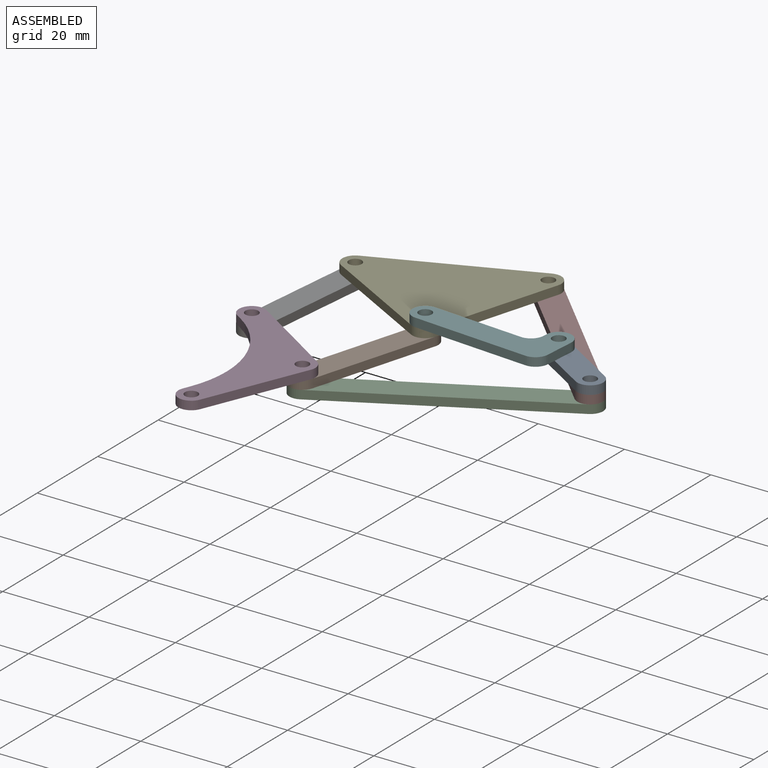
[diagram: assembled view]
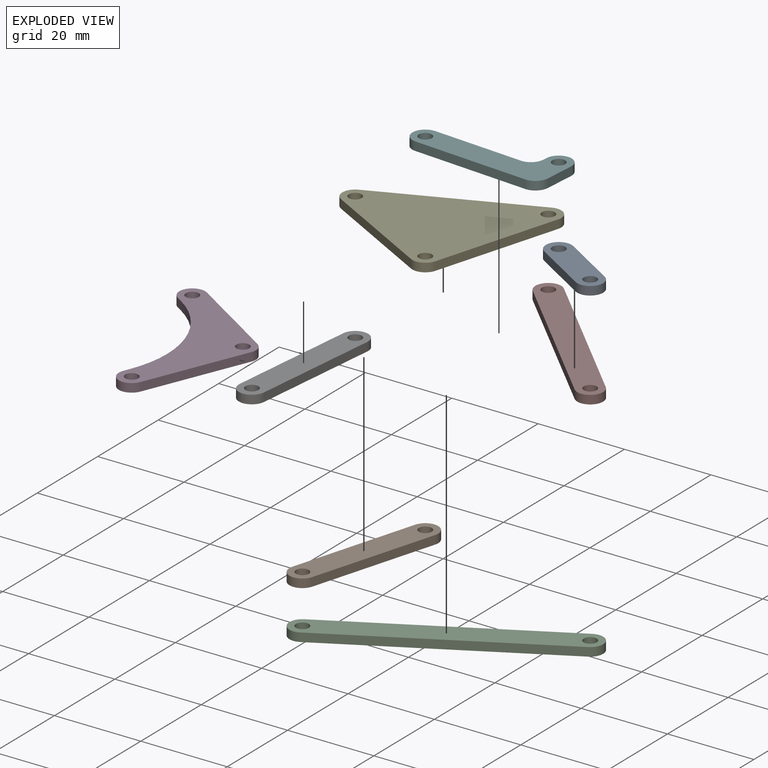
[diagram: exploded view]
GUIDED TOUR — MATED ASSEMBLY (Onshape document e64e4499c72a617ab07565a3, AutoMate assembly e64e4499c72a617ab07565a3_f2951c71cba37e5176c06842_a24cb1f9f9b5f16dfcb40d52_default)

This assembly has 8 components, labeled P0..P7 below (a component is one placed occurrence of a part; the same part can appear more than once), held together by 10 mates. A mate is a constraint between two components; its type names the relative motion it leaves free:
  REVOLUTE — leaves rotation about the listed axis free (a hinge).
Axis/direction vectors are unit vectors and 'through' points are millimeter coordinates, both in the assembly's world frame.

MATES
  1. REVOLUTE "轉動 6": P0 <-> P5, axis (0.000, 0.000, 1.000) through (55.74, 67.24, 4.14) mm
  2. REVOLUTE "轉動 3": P4 <-> P6, axis (0.000, 0.000, -1.000) through (1.97, 76.70, 2.14) mm
  3. REVOLUTE "轉動 4": P4 <-> P1, axis (0.000, 0.000, -1.000) through (28.29, 62.28, 2.14) mm
  4. REVOLUTE "轉動 1": P6 <-> P3, axis (0.000, 0.000, 1.000) through (-1.08, 46.85, 2.14) mm
  5. REVOLUTE "轉動 10": P7 <-> P2, axis (0.000, 0.000, -1.000) through (68.52, 59.39, 0.14) mm
  6. REVOLUTE "轉動 8": P7 <-> P4, axis (0.000, 0.000, 1.000) through (36.60, 91.11, 2.14) mm
  7. REVOLUTE "轉動 9": P7 <-> P0, axis (0.000, 0.000, 1.000) through (68.52, 59.39, 2.14) mm
  8. REVOLUTE "轉動 5": P5 <-> P4, axis (0.000, 0.000, -1.000) through (28.29, 62.28, 4.14) mm
  9. REVOLUTE "轉動 2": P1 <-> P3, axis (0.000, 0.000, 1.000) through (20.02, 33.44, 2.14) mm
  10. REVOLUTE "轉動 7": P1 <-> P2, axis (0.000, 0.000, -1.000) through (20.02, 33.44, 0.14) mm

ASSEMBLY ORDER
  1. P7 — the base component [order verified]
  2. P1 [order verified]
  3. P0 [order verified]
  4. P6 [order verified]
  5. P4 [order verified]
  6. P3 [order verified]
  7. P2 [order verified]
  8. P5 [order verified]
Order-tag legend:
  [order verified] — this step's position reverses a verified removal order: the component was checked to insert without passing through the ones already placed.

Of the 8 components, 8 carry the full construction recipe — the FeatureScript program that regenerates the part's solid from scratch; the rest are supplied as boundary geometry only.
Each toured component is shown spotlighted twice — in the assembled view, then in the exploded view, where a leader line traces a displaced component back to its assembled socket (saturated green if recipe-attached, orange if geometry-only; every other component desaturated gray) — followed by its recipe or geometry summary and the mates that hold it.
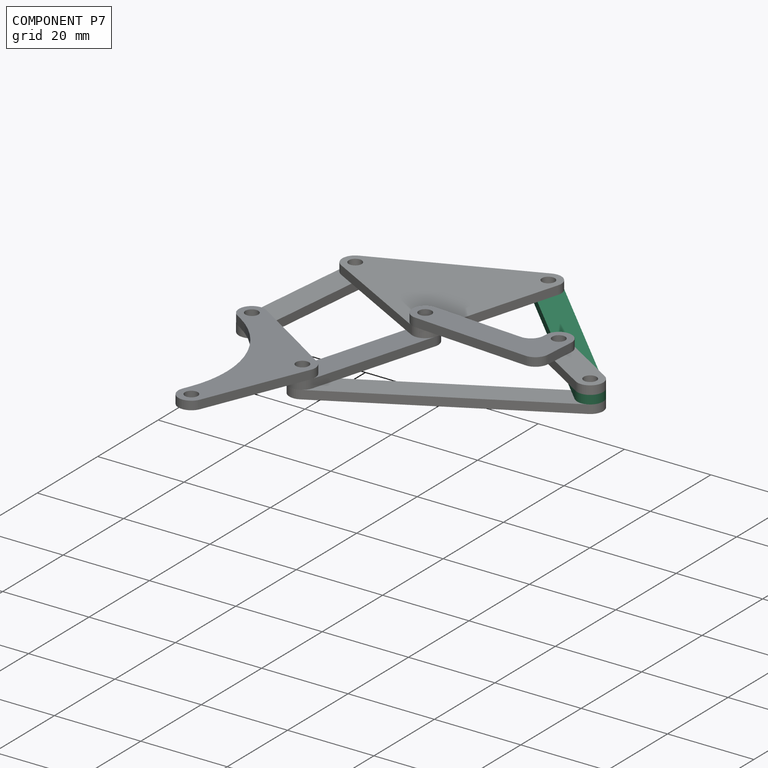
[diagram: component P7 — assembled]
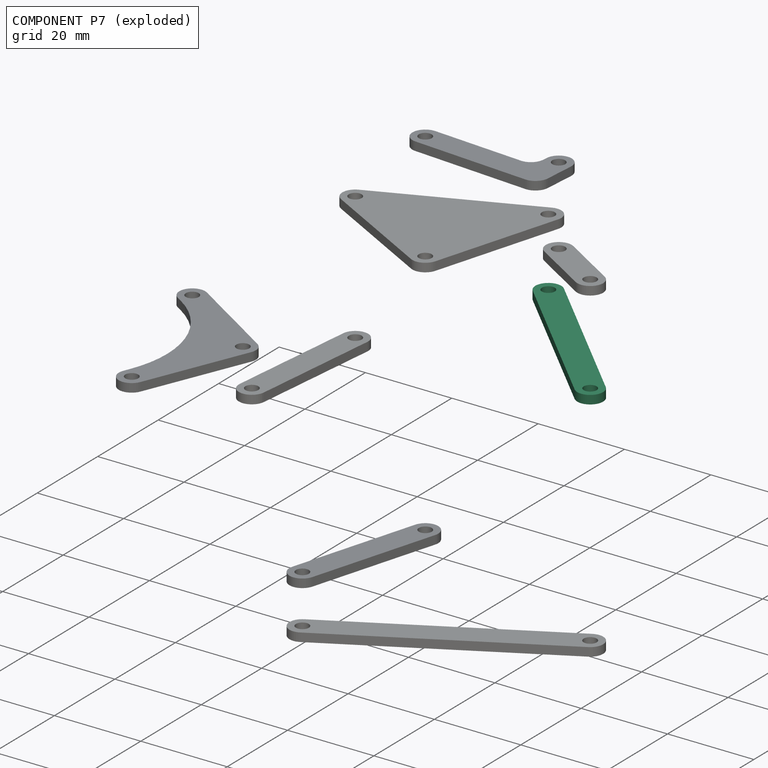
[diagram: component P7 — exploded]
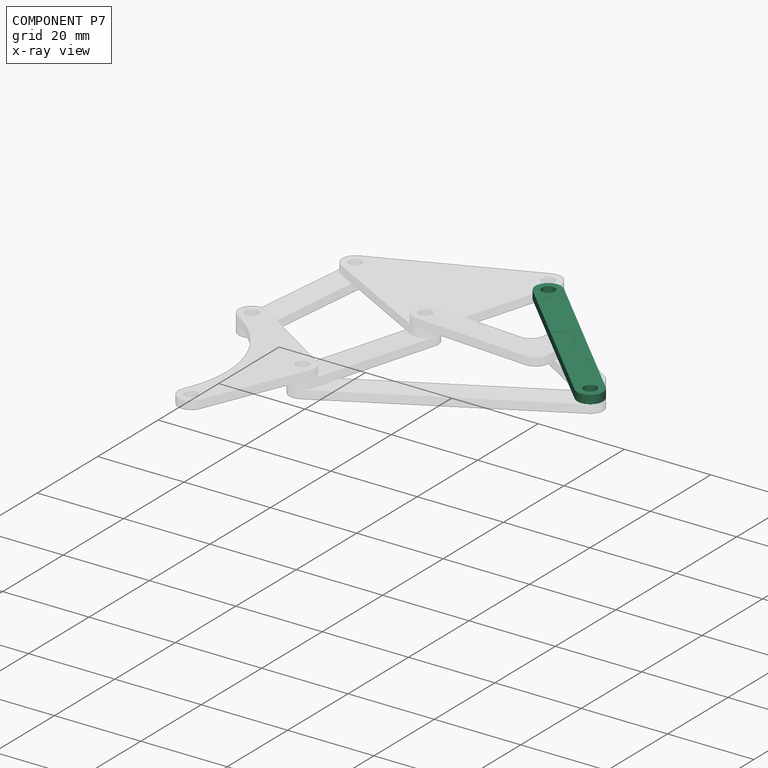
[diagram: component P7 — x-ray view]
COMPONENT P7 — recipe-attached (CADFS 00742755, mesh-verified: the recipe's output STEP matches this component's geometry to below the mesh-comparison resolution (tessellation chordal tolerance ~0.0771 mm)).
Held by: REVOLUTE mate "轉動 10" to P2; REVOLUTE mate "轉動 8" to P4; REVOLUTE mate "轉動 9" to P0.
Construction recipe (FeatureScript — the CAD program that rebuilds this solid; sketch coordinates are in the units given by the * unit suffixes, e.g. mm):

FeatureScript 1511;
import(path : "onshape/std/geometry.fs", version : "1511.0");
import(path : "onshape/std/common.fs", version : "1511.0");
const mm = millimeter;
const VERTEX = EntityType.VERTEX;
const EDGE = EntityType.EDGE;
const FACE = EntityType.FACE;
const BODY = EntityType.BODY;
function v(x, y){return vector(x, y);}
function OD(order){return orderDisambiguation(order);}
function OSD(set){return originalSetDisambiguation(set);}
function TD(topology){return topologyDisambiguation(topology);}
function TDD(query){return trueDependencyDisambiguation(query);}
function sQuery(a, b, c) {return sketchEntityQuery(a, b, c);}

annotation { "Feature Type Name" : "Feature", "Feature Type Description" : "" }
export const myFeature = defineFeature(function(context is Context, id is Id, definition is map)
    precondition{}
    {
        {
            var Q0;
            Q0=qCreatedBy(makeId("Top.planeOp"),FACE);
            var sketch = newSketch(context, id + "F0", { "sketchPlane" : qUnion([Q0])});
            skLineSegment(sketch, "E0.bottom", {"start": v(22.5, -3) * mm, "end": v(-22.5, -3) * mm});
            skLineSegment(sketch, "E0.top", {"start": v(22.5, 3) * mm, "end": v(-22.5, 3) * mm});
            skPoint(sketch, "E0.middle", {"position": v(0, 0) * mm});
            skArc(sketch, "E1", {"start": v(-22.5, 3) * mm, "mid": v(-25.5, 0) * mm, "end": v(-22.5, -3) * mm});
            skArc(sketch, "E2", {"start": v(22.5, -3) * mm, "mid": v(25.5, 0) * mm, "end": v(22.5, 3) * mm});
            skCircle(sketch, "E3", {"center": v(-22.5, 0) * mm, "radius": 1.5 * mm});
            skCircle(sketch, "E4", {"center": v(22.5, 0) * mm, "radius": 1.5 * mm});
            skSolve(sketch);
        }
        {
            var Q0;
            Q0 = qSketchRegion(id + "F0", true);
            extrude(context, id + "F1", {"entities" : qUnion([Q0]), "depth" : 2 * mm, "offsetDistance" : 25 * mm});
        }
    });
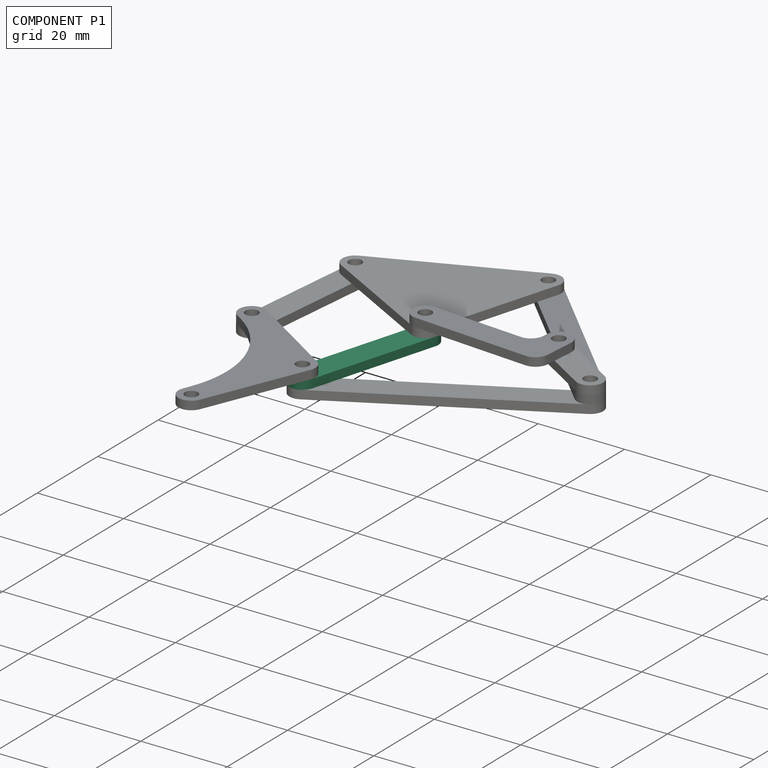
[diagram: component P1 — assembled]
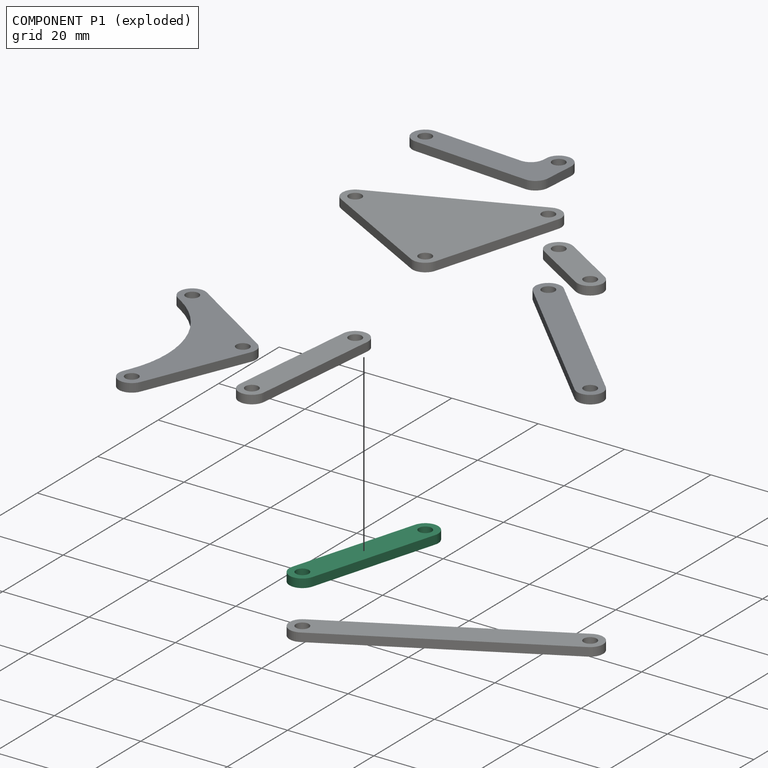
[diagram: component P1 — exploded]
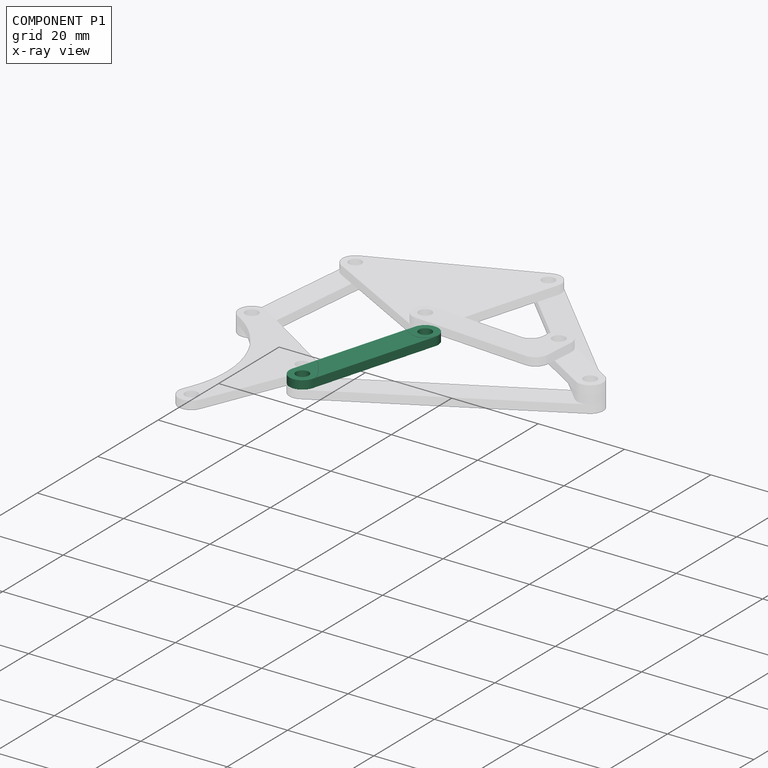
[diagram: component P1 — x-ray view]
COMPONENT P1 — recipe-attached (CADFS 00742754, mesh-verified: the recipe's output STEP matches this component's geometry to below the mesh-comparison resolution (tessellation chordal tolerance ~0.0548 mm)).
Held by: REVOLUTE mate "轉動 4" to P4; REVOLUTE mate "轉動 2" to P3; REVOLUTE mate "轉動 7" to P2.
Construction recipe (FeatureScript — the CAD program that rebuilds this solid; sketch coordinates are in the units given by the * unit suffixes, e.g. mm):

FeatureScript 1511;
import(path : "onshape/std/geometry.fs", version : "1511.0");
import(path : "onshape/std/common.fs", version : "1511.0");
const mm = millimeter;
const VERTEX = EntityType.VERTEX;
const EDGE = EntityType.EDGE;
const FACE = EntityType.FACE;
const BODY = EntityType.BODY;
function v(x, y){return vector(x, y);}
function OD(order){return orderDisambiguation(order);}
function OSD(set){return originalSetDisambiguation(set);}
function TD(topology){return topologyDisambiguation(topology);}
function TDD(query){return trueDependencyDisambiguation(query);}
function sQuery(a, b, c) {return sketchEntityQuery(a, b, c);}

annotation { "Feature Type Name" : "Feature", "Feature Type Description" : "" }
export const myFeature = defineFeature(function(context is Context, id is Id, definition is map)
    precondition{}
    {
        {
            var Q0;
            Q0=qCreatedBy(makeId("Top.planeOp"),FACE);
            var sketch = newSketch(context, id + "F0", { "sketchPlane" : qUnion([Q0])});
            skLineSegment(sketch, "E0.bottom", {"start": v(15, -3) * mm, "end": v(-15, -3) * mm});
            skLineSegment(sketch, "E0.top", {"start": v(15, 3) * mm, "end": v(-15, 3) * mm});
            skPoint(sketch, "E0.middle", {"position": v(0, 0) * mm});
            skArc(sketch, "E1", {"start": v(-15, 3) * mm, "mid": v(-18, 0) * mm, "end": v(-15, -3) * mm});
            skArc(sketch, "E2", {"start": v(15, -3) * mm, "mid": v(18, 0) * mm, "end": v(15, 3) * mm});
            skCircle(sketch, "E3", {"center": v(-15, 0) * mm, "radius": 1.5 * mm});
            skCircle(sketch, "E4", {"center": v(15, 0) * mm, "radius": 1.5 * mm});
            skSolve(sketch);
        }
        {
            var Q0;
            Q0 = qSketchRegion(id + "F0", true);
            extrude(context, id + "F1", {"entities" : qUnion([Q0]), "depth" : 2 * mm, "offsetDistance" : 25 * mm});
        }
    });
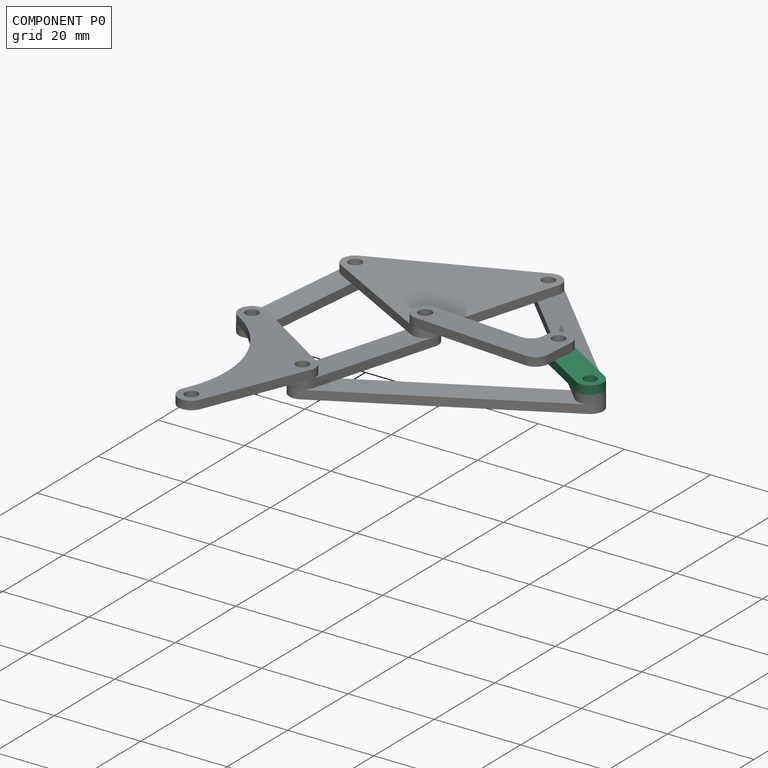
[diagram: component P0 — assembled]
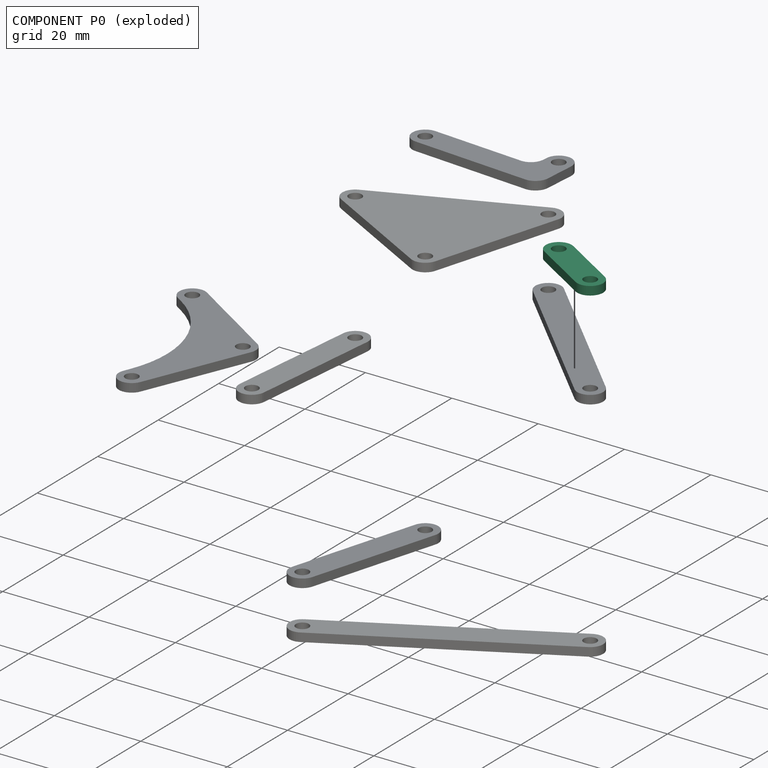
[diagram: component P0 — exploded]
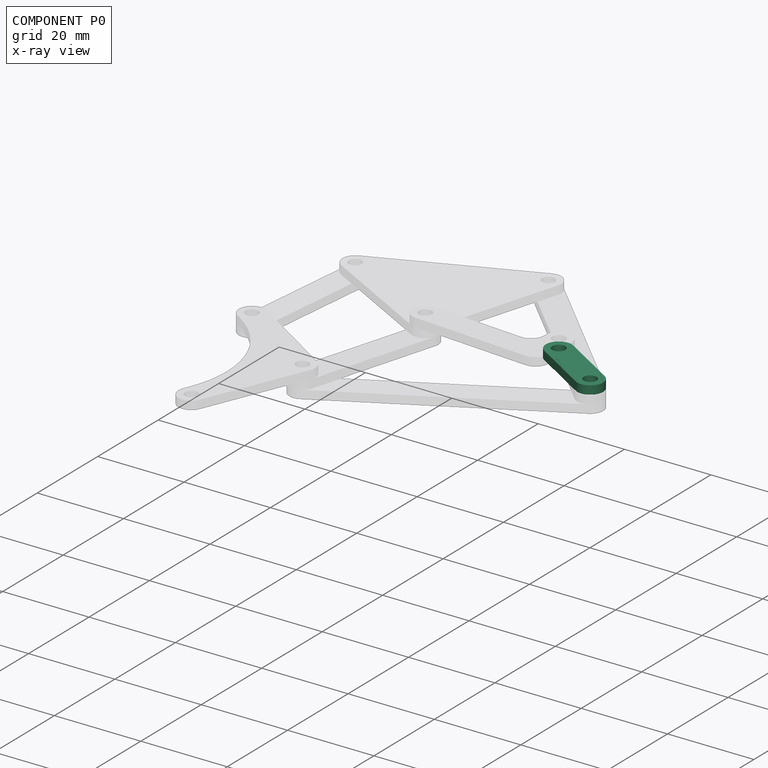
[diagram: component P0 — x-ray view]
COMPONENT P0 — recipe-attached (CADFS 00742753, mesh-verified: the recipe's output STEP matches this component's geometry to below the mesh-comparison resolution (tessellation chordal tolerance ~0.0329 mm)).
Held by: REVOLUTE mate "轉動 6" to P5; REVOLUTE mate "轉動 9" to P7.
Construction recipe (FeatureScript — the CAD program that rebuilds this solid; sketch coordinates are in the units given by the * unit suffixes, e.g. mm):

FeatureScript 1511;
import(path : "onshape/std/geometry.fs", version : "1511.0");
import(path : "onshape/std/common.fs", version : "1511.0");
const mm = millimeter;
const VERTEX = EntityType.VERTEX;
const EDGE = EntityType.EDGE;
const FACE = EntityType.FACE;
const BODY = EntityType.BODY;
function v(x, y){return vector(x, y);}
function OD(order){return orderDisambiguation(order);}
function OSD(set){return originalSetDisambiguation(set);}
function TD(topology){return topologyDisambiguation(topology);}
function TDD(query){return trueDependencyDisambiguation(query);}
function sQuery(a, b, c) {return sketchEntityQuery(a, b, c);}

annotation { "Feature Type Name" : "Feature", "Feature Type Description" : "" }
export const myFeature = defineFeature(function(context is Context, id is Id, definition is map)
    precondition{}
    {
        {
            var Q0;
            Q0=qCreatedBy(makeId("Top.planeOp"),FACE);
            var sketch = newSketch(context, id + "F0", { "sketchPlane" : qUnion([Q0])});
            skLineSegment(sketch, "E0.bottom", {"start": v(7.5, -3) * mm, "end": v(-7.5, -3) * mm});
            skLineSegment(sketch, "E0.top", {"start": v(7.5, 3) * mm, "end": v(-7.5, 3) * mm});
            skPoint(sketch, "E0.middle", {"position": v(0, 0) * mm});
            skArc(sketch, "E1", {"start": v(-7.5, 3) * mm, "mid": v(-10.5, 0) * mm, "end": v(-7.5, -3) * mm});
            skArc(sketch, "E2", {"start": v(7.5, -3) * mm, "mid": v(10.5, 0) * mm, "end": v(7.5, 3) * mm});
            skCircle(sketch, "E3", {"center": v(-7.5, 0) * mm, "radius": 1.5 * mm});
            skCircle(sketch, "E4", {"center": v(7.5, 0) * mm, "radius": 1.5 * mm});
            skSolve(sketch);
        }
        {
            var Q0;
            Q0 = qSketchRegion(id + "F0", true);
            extrude(context, id + "F1", {"entities" : qUnion([Q0]), "depth" : 2 * mm, "offsetDistance" : 25 * mm});
        }
    });
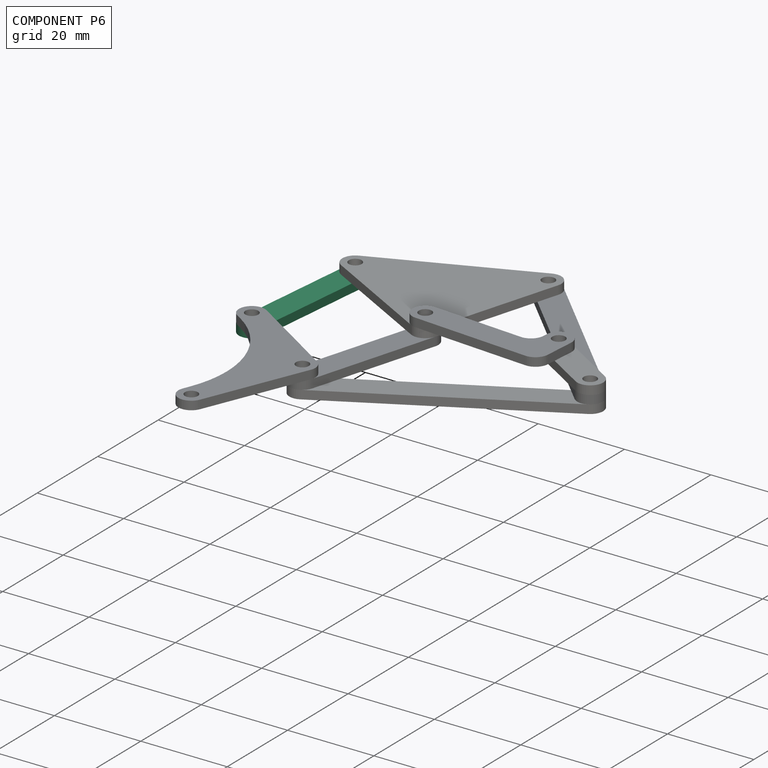
[diagram: component P6 — assembled]
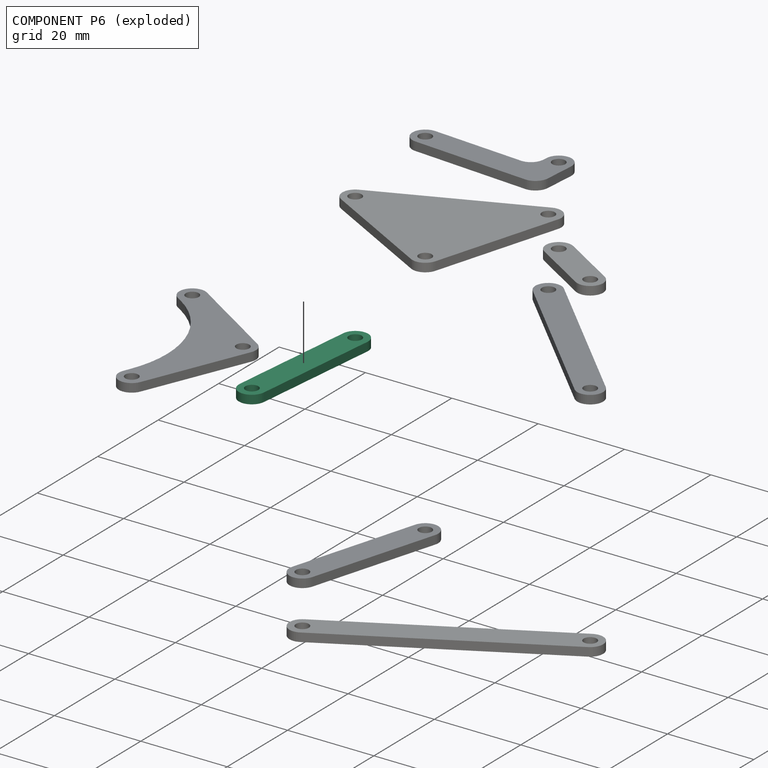
[diagram: component P6 — exploded]
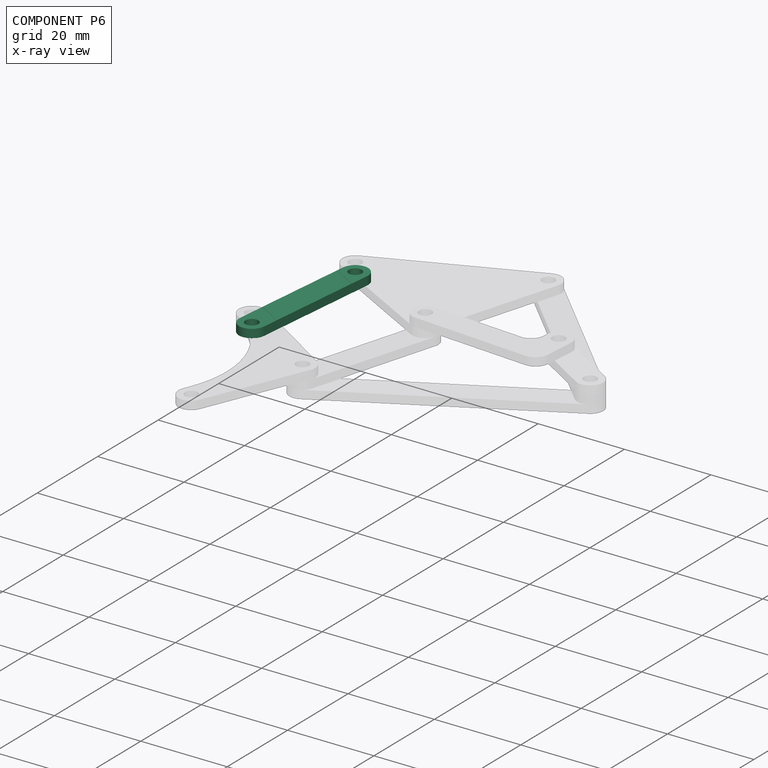
[diagram: component P6 — x-ray view]
COMPONENT P6 — same part as P1 (CADFS 00742754); its construction recipe is shown at P1.
Held by: REVOLUTE mate "轉動 3" to P4; REVOLUTE mate "轉動 1" to P3.
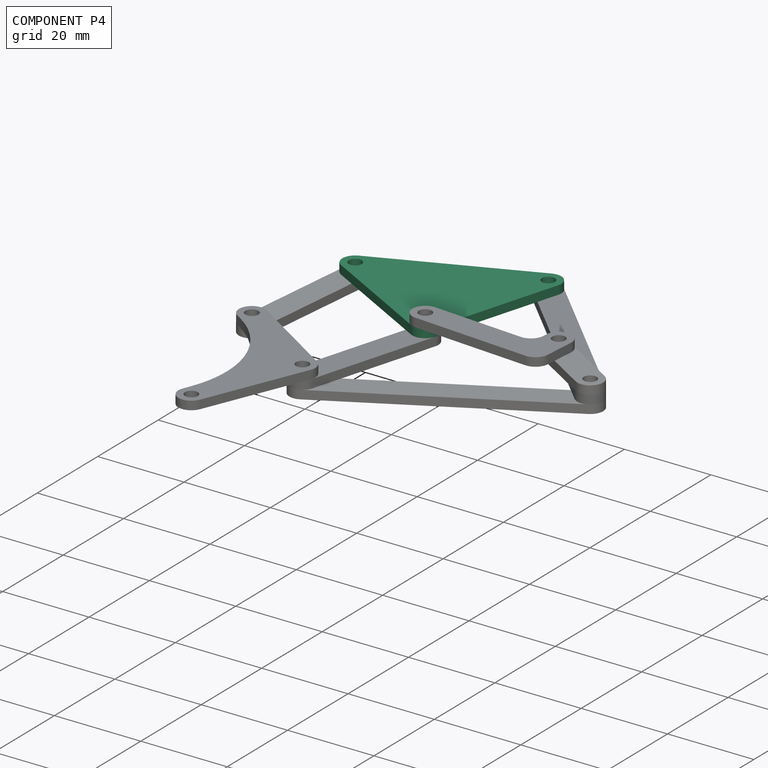
[diagram: component P4 — assembled]
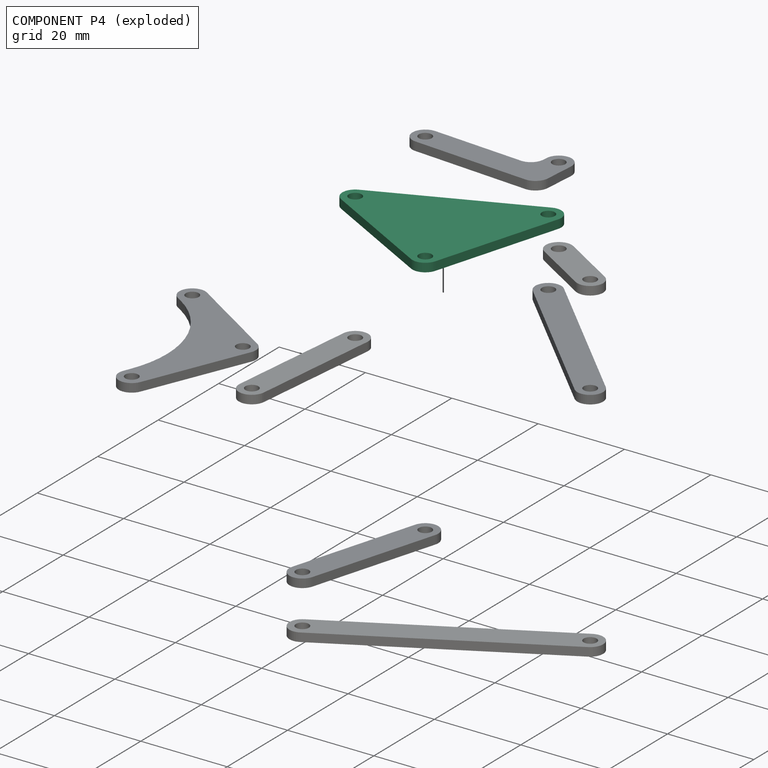
[diagram: component P4 — exploded]
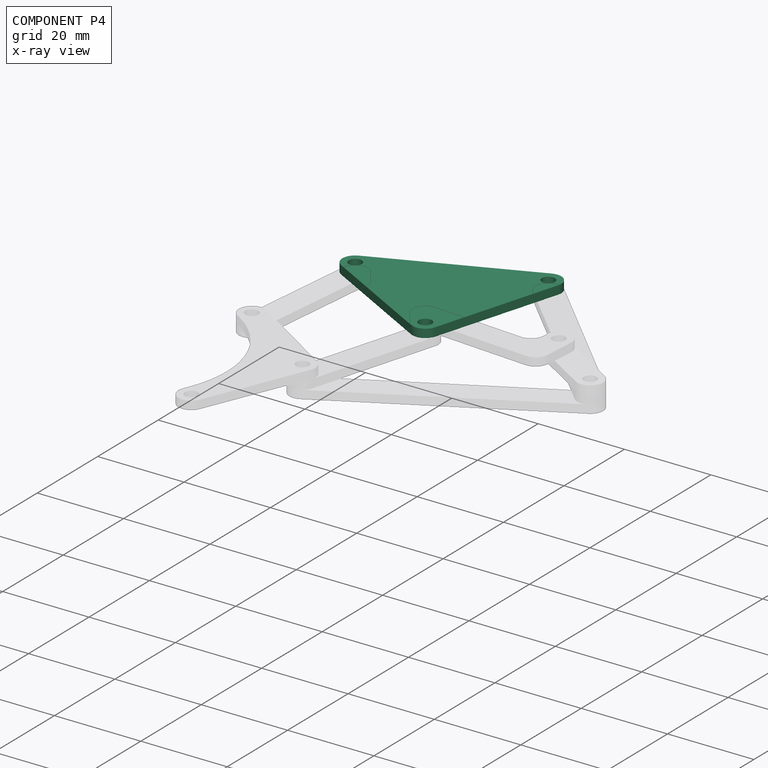
[diagram: component P4 — x-ray view]
COMPONENT P4 — recipe-attached (CADFS 00742757, mesh-verified: the recipe's output STEP matches this component's geometry to below the mesh-comparison resolution (tessellation chordal tolerance ~0.0757 mm)).
Held by: REVOLUTE mate "轉動 3" to P6; REVOLUTE mate "轉動 4" to P1; REVOLUTE mate "轉動 8" to P7; REVOLUTE mate "轉動 5" to P5.
Construction recipe (FeatureScript — the CAD program that rebuilds this solid; sketch coordinates are in the units given by the * unit suffixes, e.g. mm):

FeatureScript 1511;
import(path : "onshape/std/geometry.fs", version : "1511.0");
import(path : "onshape/std/common.fs", version : "1511.0");
const mm = millimeter;
const VERTEX = EntityType.VERTEX;
const EDGE = EntityType.EDGE;
const FACE = EntityType.FACE;
const BODY = EntityType.BODY;
function v(x, y){return vector(x, y);}
function OD(order){return orderDisambiguation(order);}
function OSD(set){return originalSetDisambiguation(set);}
function TD(topology){return topologyDisambiguation(topology);}
function TDD(query){return trueDependencyDisambiguation(query);}
function sQuery(a, b, c) {return sketchEntityQuery(a, b, c);}

annotation { "Feature Type Name" : "Feature", "Feature Type Description" : "" }
export const myFeature = defineFeature(function(context is Context, id is Id, definition is map)
    precondition{}
    {
        {
            var Q0;
            Q0=qCreatedBy(makeId("Top.planeOp"),FACE);
            var sketch = newSketch(context, id + "F0", { "sketchPlane" : qUnion([Q0])});
            skLineSegment(sketch, "E0", {"start": v(-0.82, 3.66) * mm, "end": v(-7.38, 32.94) * mm});
            skLineSegment(sketch, "E1", {"start": v(-12.65, 34.16) * mm, "end": v(-36.1, 4.87) * mm});
            skLineSegment(sketch, "E2", {"start": v(-33.76, 0) * mm, "end": v(-3.75, 0) * mm});
            skLineSegment(sketch, "E3.0", {"start": v(-10.31, 32.28) * mm, "end": v(-33.76, 3) * mm, "construction": true});
            skLineSegment(sketch, "E3.1", {"start": v(-3.75, 3) * mm, "end": v(-10.31, 32.28) * mm, "construction": true});
            skLineSegment(sketch, "E3.2", {"start": v(-33.76, 3) * mm, "end": v(-3.75, 3) * mm, "construction": true});
            skPoint(sketch, "E4.visualSharp", {"position": v(-8.75, 39.03) * mm});
            skArc(sketch, "E4.filletArc", {"start": v(-7.38, 32.94) * mm, "mid": v(-9.64, 35.2) * mm, "end": v(-12.65, 34.16) * mm});
            skPoint(sketch, "E5.visualSharp", {"position": v(0, 0) * mm});
            skArc(sketch, "E5.filletArc", {"start": v(-3.75, 0) * mm, "mid": v(-1.4, 1.13) * mm, "end": v(-0.82, 3.66) * mm});
            skPoint(sketch, "E6.visualSharp", {"position": v(-40, 0) * mm});
            skArc(sketch, "E6.filletArc", {"start": v(-36.1, 4.87) * mm, "mid": v(-36.46, 1.7) * mm, "end": v(-33.76, 0) * mm});
            skCircle(sketch, "E7", {"center": v(-10.31, 32.28) * mm, "radius": 1.5 * mm});
            skCircle(sketch, "E8", {"center": v(-3.75, 3) * mm, "radius": 1.5 * mm});
            skCircle(sketch, "E9", {"center": v(-33.76, 3) * mm, "radius": 1.5 * mm});
            skSolve(sketch);
        }
        {
            var Q0;
            Q0 = qSketchRegion(id + "F0", true);
            extrude(context, id + "F1", {"entities" : qUnion([Q0]), "depth" : 2 * mm, "offsetDistance" : 25 * mm});
        }
    });
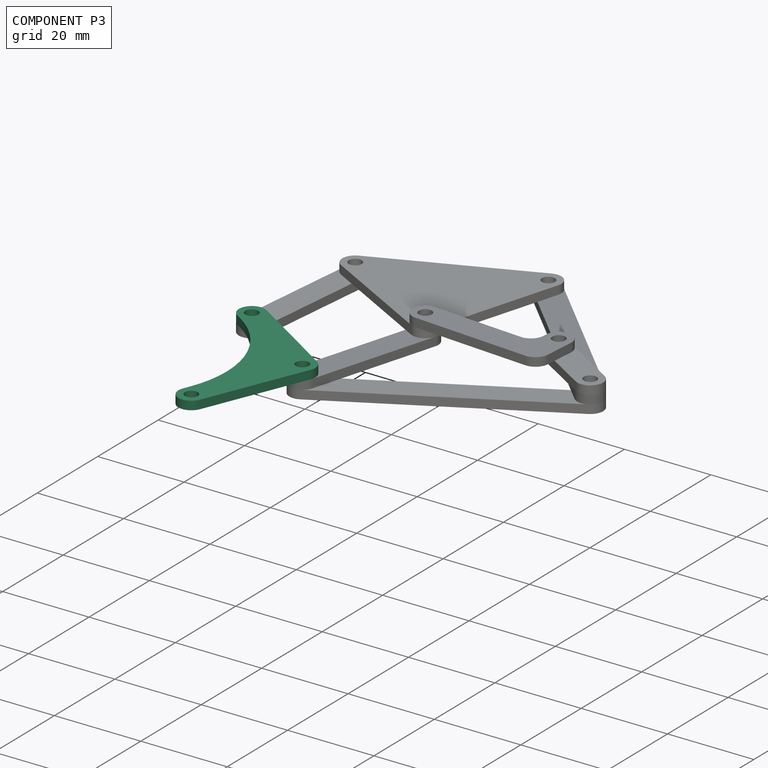
[diagram: component P3 — assembled]
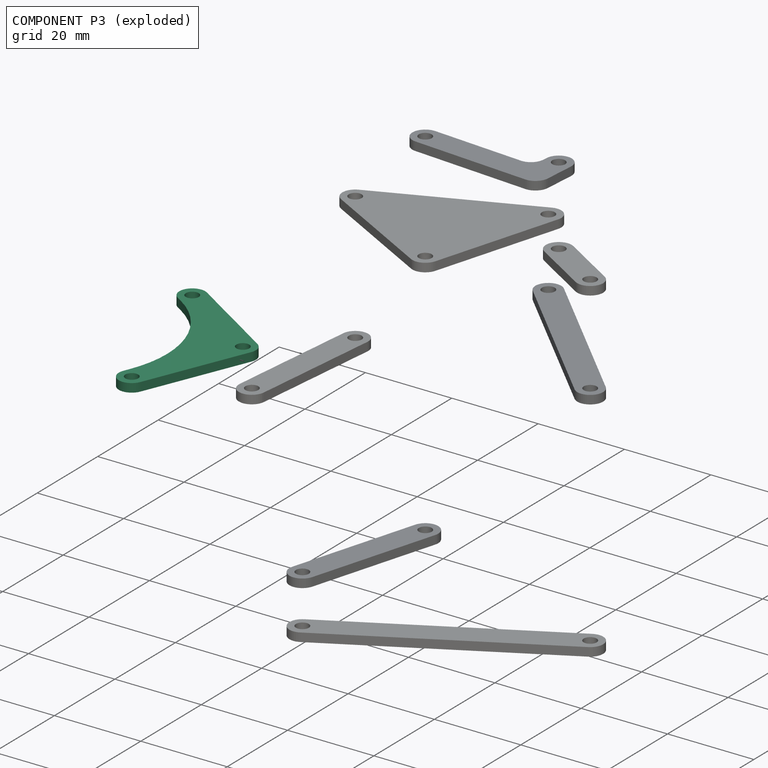
[diagram: component P3 — exploded]
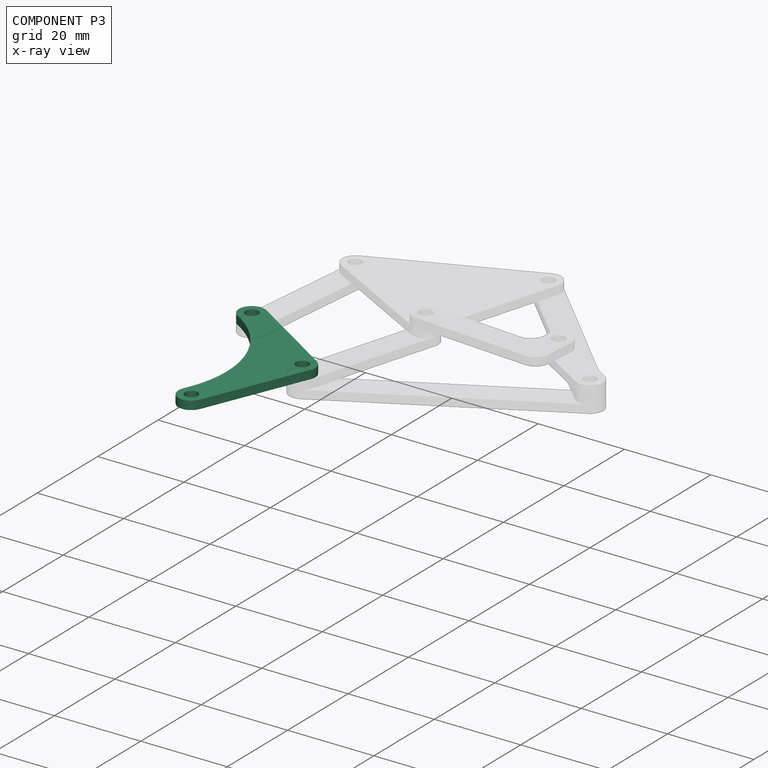
[diagram: component P3 — x-ray view]
COMPONENT P3 — recipe-attached (CADFS 00742759, mesh-verified: the recipe's output STEP matches this component's geometry to below the mesh-comparison resolution (tessellation chordal tolerance ~0.0702 mm)).
Held by: REVOLUTE mate "轉動 1" to P6; REVOLUTE mate "轉動 2" to P1.
Construction recipe (FeatureScript — the CAD program that rebuilds this solid; sketch coordinates are in the units given by the * unit suffixes, e.g. mm):

FeatureScript 1511;
import(path : "onshape/std/geometry.fs", version : "1511.0");
import(path : "onshape/std/common.fs", version : "1511.0");
const mm = millimeter;
const VERTEX = EntityType.VERTEX;
const EDGE = EntityType.EDGE;
const FACE = EntityType.FACE;
const BODY = EntityType.BODY;
function v(x, y){return vector(x, y);}
function OD(order){return orderDisambiguation(order);}
function OSD(set){return originalSetDisambiguation(set);}
function TD(topology){return topologyDisambiguation(topology);}
function TDD(query){return trueDependencyDisambiguation(query);}
function sQuery(a, b, c) {return sketchEntityQuery(a, b, c);}

annotation { "Feature Type Name" : "Feature", "Feature Type Description" : "" }
export const myFeature = defineFeature(function(context is Context, id is Id, definition is map)
    precondition{}
    {
        {
            var Q0;
            Q0=qCreatedBy(makeId("Top.planeOp"),FACE);
            var sketch = newSketch(context, id + "F0", { "sketchPlane" : qUnion([Q0])});
            skLineSegment(sketch, "E0", {"start": v(-25, 0) * mm, "end": v(0, 0) * mm, "construction": true});
            skLineSegment(sketch, "E1", {"start": v(0, 0) * mm, "end": v(4.34, 24.62) * mm, "construction": true});
            skArc(sketch, "E2.0.startCap", {"start": v(2.95, -0.52) * mm, "mid": v(1.93, -2.3) * mm, "end": v(0, -3) * mm});
            skArc(sketch, "E2.0.endCap", {"start": v(1.39, 25.14) * mm, "mid": v(4.86, 27.57) * mm, "end": v(7.3, 24.1) * mm});
            skLineSegment(sketch, "E2.0.left", {"start": v(1.13, 23.66) * mm, "end": v(1.39, 25.14) * mm});
            skLineSegment(sketch, "E2.0.right", {"start": v(2.95, -0.52) * mm, "end": v(7.3, 24.1) * mm});
            skArc(sketch, "E2.1.startCap", {"start": v(-25, -3) * mm, "mid": v(-28, 0) * mm, "end": v(-25, 3) * mm});
            skLineSegment(sketch, "E2.1.left", {"start": v(-25, 3) * mm, "end": v(-23.5, 3) * mm});
            skLineSegment(sketch, "E2.1.right", {"start": v(-25, -3) * mm, "end": v(0, -3) * mm});
            skCircle(sketch, "E3", {"center": v(-25, 0) * mm, "radius": 1.5 * mm});
            skCircle(sketch, "E4", {"center": v(4.34, 24.62) * mm, "radius": 1.5 * mm});
            skCircle(sketch, "E5", {"center": v(0, 0) * mm, "radius": 1.5 * mm});
            skPoint(sketch, "E6.visualSharp", {"position": v(-2.52, 3) * mm});
            skArc(sketch, "E6.filletArc", {"start": v(-23.5, 3) * mm, "mid": v(-7.43, 8.85) * mm, "end": v(1.13, 23.66) * mm});
            skSolve(sketch);
        }
        {
            var Q0;
            Q0 = qSketchRegion(id + "F0", true);
            extrude(context, id + "F1", {"entities" : qUnion([Q0]), "depth" : 2 * mm, "offsetDistance" : 25 * mm});
        }
    });
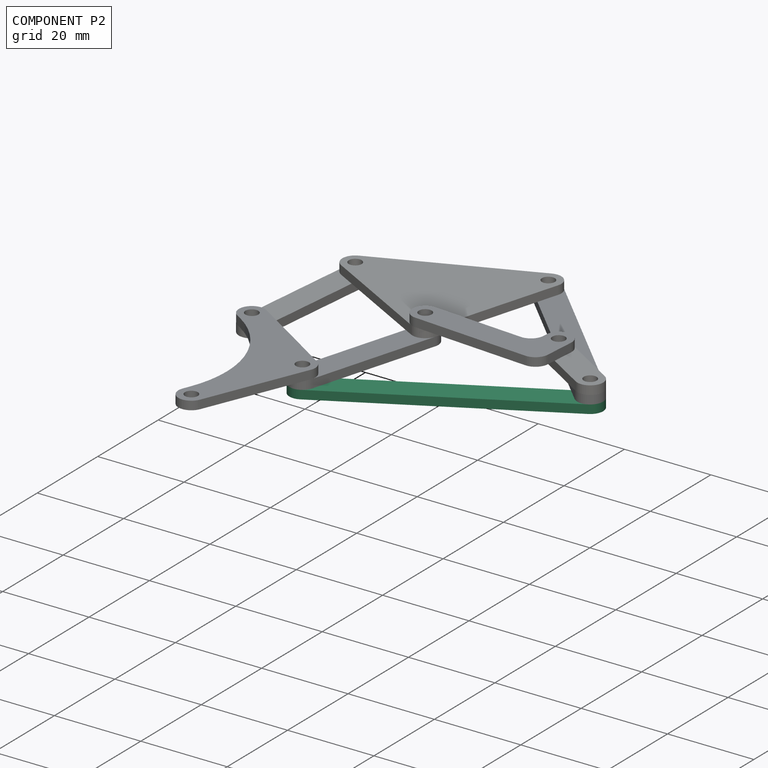
[diagram: component P2 — assembled]
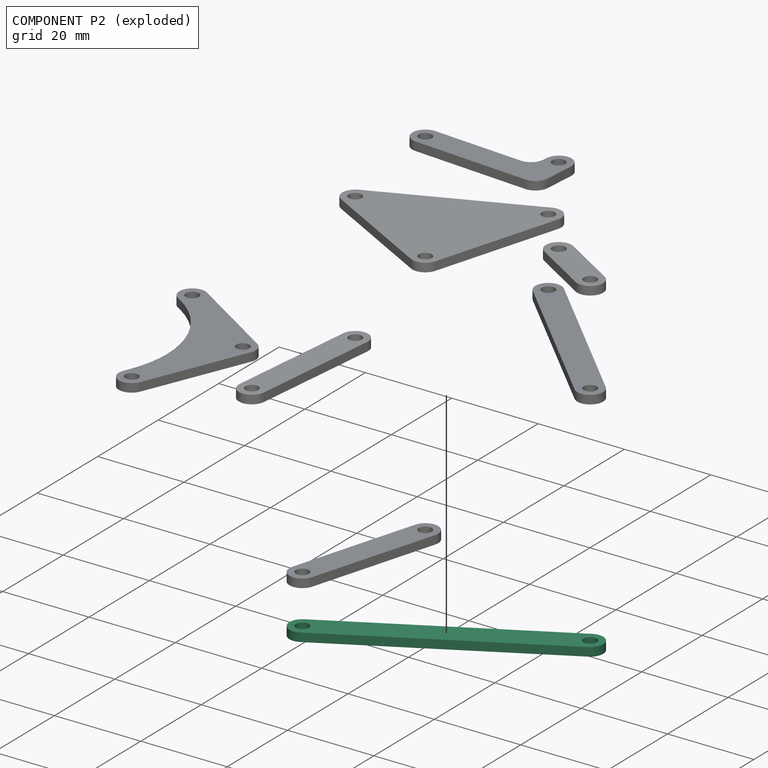
[diagram: component P2 — exploded]
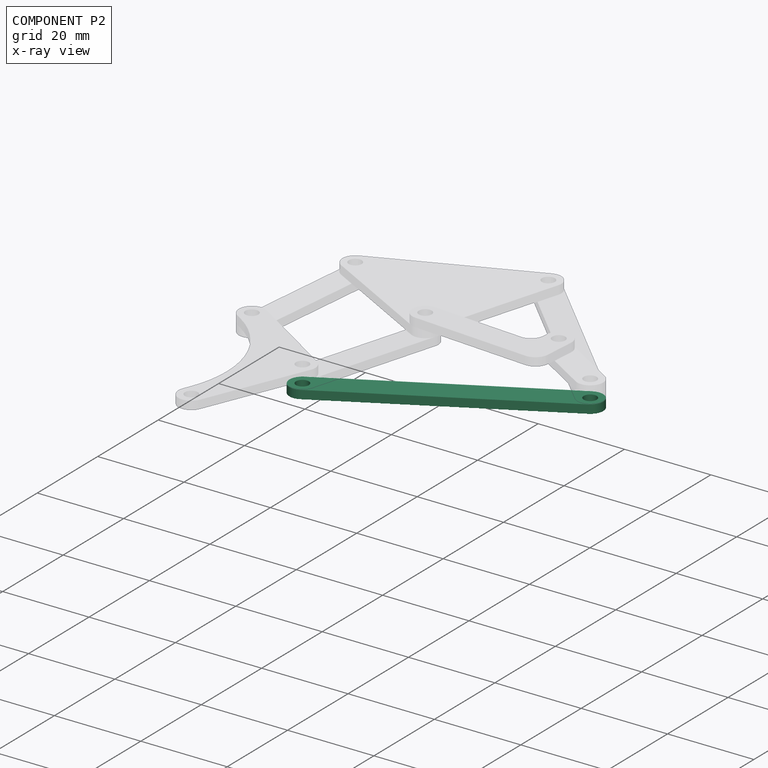
[diagram: component P2 — x-ray view]
COMPONENT P2 — recipe-attached (CADFS 00742756, mesh-verified: the recipe's output STEP matches this component's geometry to below the mesh-comparison resolution (tessellation chordal tolerance ~0.092 mm)).
Held by: REVOLUTE mate "轉動 10" to P7; REVOLUTE mate "轉動 7" to P1.
Construction recipe (FeatureScript — the CAD program that rebuilds this solid; sketch coordinates are in the units given by the * unit suffixes, e.g. mm):

FeatureScript 1511;
import(path : "onshape/std/geometry.fs", version : "1511.0");
import(path : "onshape/std/common.fs", version : "1511.0");
const mm = millimeter;
const VERTEX = EntityType.VERTEX;
const EDGE = EntityType.EDGE;
const FACE = EntityType.FACE;
const BODY = EntityType.BODY;
function v(x, y){return vector(x, y);}
function OD(order){return orderDisambiguation(order);}
function OSD(set){return originalSetDisambiguation(set);}
function TD(topology){return topologyDisambiguation(topology);}
function TDD(query){return trueDependencyDisambiguation(query);}
function sQuery(a, b, c) {return sketchEntityQuery(a, b, c);}

annotation { "Feature Type Name" : "Feature", "Feature Type Description" : "" }
export const myFeature = defineFeature(function(context is Context, id is Id, definition is map)
    precondition{}
    {
        {
            var Q0;
            Q0=qCreatedBy(makeId("Top.planeOp"),FACE);
            var sketch = newSketch(context, id + "F0", { "sketchPlane" : qUnion([Q0])});
            skLineSegment(sketch, "E0.bottom", {"start": v(27.5, -3) * mm, "end": v(-27.5, -3) * mm});
            skLineSegment(sketch, "E0.top", {"start": v(27.5, 3) * mm, "end": v(-27.5, 3) * mm});
            skPoint(sketch, "E0.middle", {"position": v(0, 0) * mm});
            skArc(sketch, "E1", {"start": v(-27.5, 3) * mm, "mid": v(-30.5, 0) * mm, "end": v(-27.5, -3) * mm});
            skArc(sketch, "E2", {"start": v(27.5, -3) * mm, "mid": v(30.5, 0) * mm, "end": v(27.5, 3) * mm});
            skCircle(sketch, "E3", {"center": v(-27.5, 0) * mm, "radius": 1.5 * mm});
            skCircle(sketch, "E4", {"center": v(27.5, 0) * mm, "radius": 1.5 * mm});
            skSolve(sketch);
        }
        {
            var Q0;
            Q0 = qSketchRegion(id + "F0", true);
            extrude(context, id + "F1", {"entities" : qUnion([Q0]), "depth" : 2 * mm, "offsetDistance" : 25 * mm});
        }
    });
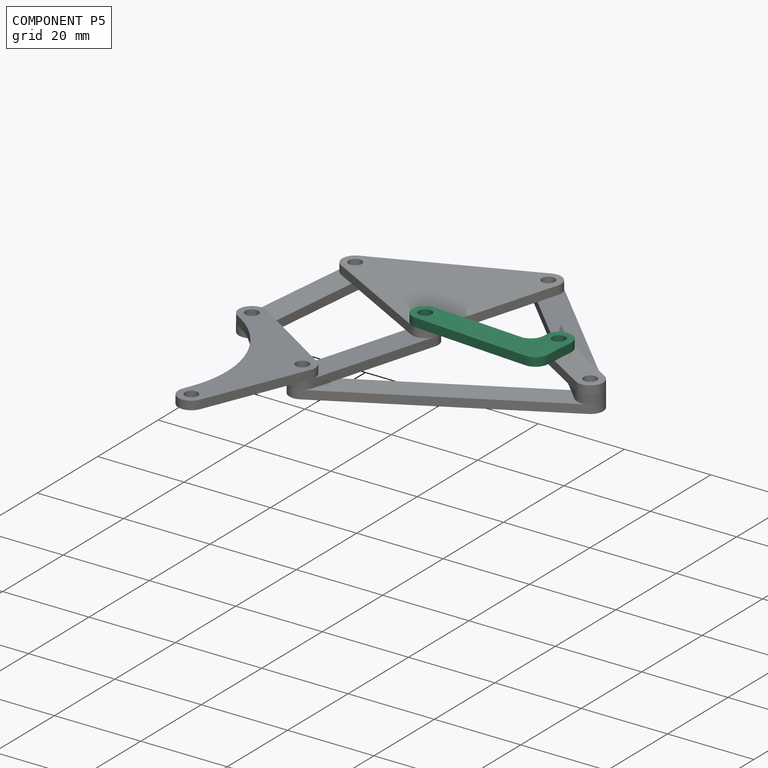
[diagram: component P5 — assembled]
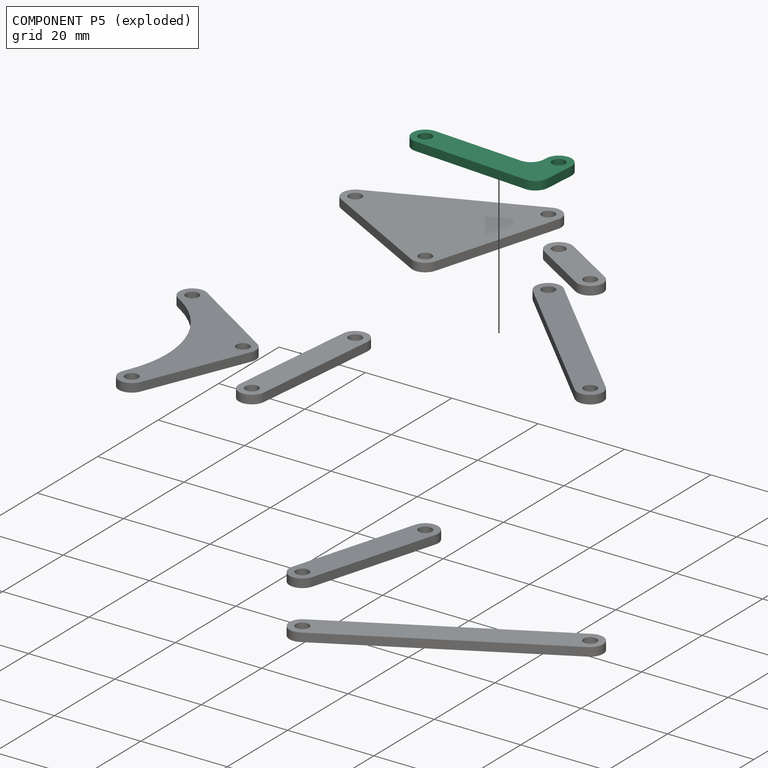
[diagram: component P5 — exploded]
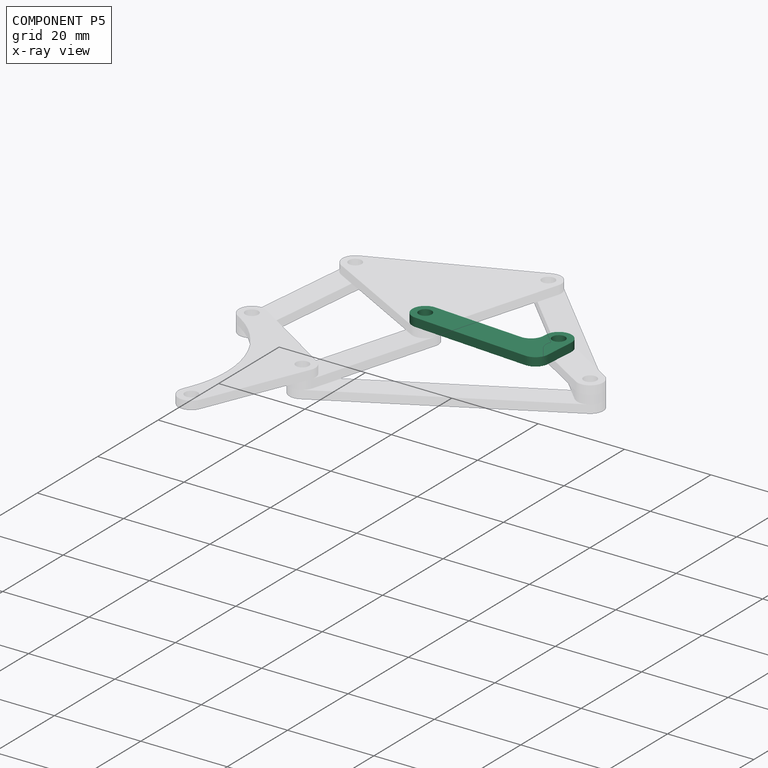
[diagram: component P5 — x-ray view]
COMPONENT P5 — recipe-attached (CADFS 00742758, mesh-verified: the recipe's output STEP matches this component's geometry to below the mesh-comparison resolution (tessellation chordal tolerance ~0.0533 mm)).
Held by: REVOLUTE mate "轉動 6" to P0; REVOLUTE mate "轉動 5" to P4.
Construction recipe (FeatureScript — the CAD program that rebuilds this solid; sketch coordinates are in the units given by the * unit suffixes, e.g. mm):

FeatureScript 1511;
import(path : "onshape/std/geometry.fs", version : "1511.0");
import(path : "onshape/std/common.fs", version : "1511.0");
const mm = millimeter;
const VERTEX = EntityType.VERTEX;
const EDGE = EntityType.EDGE;
const FACE = EntityType.FACE;
const BODY = EntityType.BODY;
function v(x, y){return vector(x, y);}
function OD(order){return orderDisambiguation(order);}
function OSD(set){return originalSetDisambiguation(set);}
function TD(topology){return topologyDisambiguation(topology);}
function TDD(query){return trueDependencyDisambiguation(query);}
function sQuery(a, b, c) {return sketchEntityQuery(a, b, c);}

annotation { "Feature Type Name" : "Feature", "Feature Type Description" : "" }
export const myFeature = defineFeature(function(context is Context, id is Id, definition is map)
    precondition{}
    {
        {
            var Q0;
            Q0=qCreatedBy(makeId("Top.planeOp"),FACE);
            var sketch = newSketch(context, id + "F0", { "sketchPlane" : qUnion([Q0])});
            skLineSegment(sketch, "E0.left", {"start": v(0, 0) * mm, "end": v(0, 10) * mm});
            skLineSegment(sketch, "E0.right", {"start": v(-6, 9) * mm, "end": v(-6, 10) * mm});
            skLineSegment(sketch, "E1.bottom", {"start": v(-3, 0) * mm, "end": v(-30, 0) * mm});
            skLineSegment(sketch, "E1.top", {"start": v(-9, 6) * mm, "end": v(-30, 6) * mm});
            skLineSegment(sketch, "E1.left", {"start": v(0, 3) * mm, "end": v(0, 6) * mm});
            skArc(sketch, "E2", {"start": v(0, 10) * mm, "mid": v(-3, 13) * mm, "end": v(-6, 10) * mm});
            skArc(sketch, "E3", {"start": v(-30, 6) * mm, "mid": v(-33, 3) * mm, "end": v(-30, 0) * mm});
            skPoint(sketch, "E4.visualSharp", {"position": v(-6, 6) * mm});
            skArc(sketch, "E4.filletArc", {"start": v(-9, 6) * mm, "mid": v(-6.88, 6.88) * mm, "end": v(-6, 9) * mm});
            skPoint(sketch, "E5.visualSharp", {"position": v(0, 0) * mm});
            skArc(sketch, "E5.filletArc", {"start": v(-3, 0) * mm, "mid": v(-0.88, 0.88) * mm, "end": v(0, 3) * mm});
            skCircle(sketch, "E6", {"center": v(-30, 3) * mm, "radius": 1.5 * mm});
            skCircle(sketch, "E7", {"center": v(-3, 10) * mm, "radius": 1.5 * mm});
            skSolve(sketch);
        }
        {
            var Q0;
            Q0 = qSketchRegion(id + "F0", true);
            extrude(context, id + "F1", {"entities" : qUnion([Q0]), "depth" : 2 * mm, "offsetDistance" : 25 * mm});
        }
    });
PROVENANCE & LICENSES
Assembly (occurrences, transforms, mates, per-part STEP geometry): AutoMate dataset, Zenodo record 7776208, CC0.
Construction recipes: CADFS (HuggingFace VladPyatov/CADFS, CC-BY-4.0, layered over the ABC dataset), FeatureScript reconstruction programs keyed by ABC model id.
Join: ABC meta listings map ABC model id -> Onshape documentId; within a shared document, parts are matched by geometric signature (bounding-box dims + volume at 0.1% relative tolerance, exact B-rep face/solid counts).
Verification: 8 of this assembly's 8 components carry a recipe attachment, and every attachment is mesh-verified: the CADFS STEP and the AutoMate member STEP were compared as meshes in their shared local frame (symmetric sampled-point-to-mesh distance); worst across the 8 attachments: below the mesh-comparison resolution (tessellation chordal tolerance ~0.092 mm) on a 61 mm part.
Renders: orthographic iso camera (az 35 / el 25); the floor grid conveys scale (grid pitch printed in each image; no ruler). In the exploded view each component is displaced by its stored offset vector: the offsets alone carry the explosion direction (mate normal/axis signs are not orientation cues and do not encode it), and separation distances are assigned per mate-chain, not proportionally to assembly-order depth.
